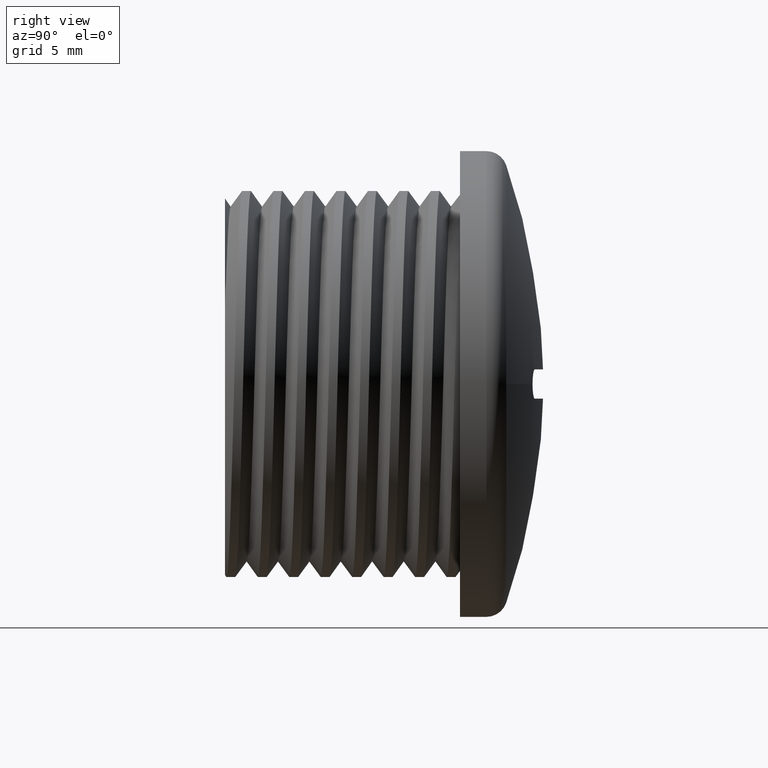
[diagram: clean part render]
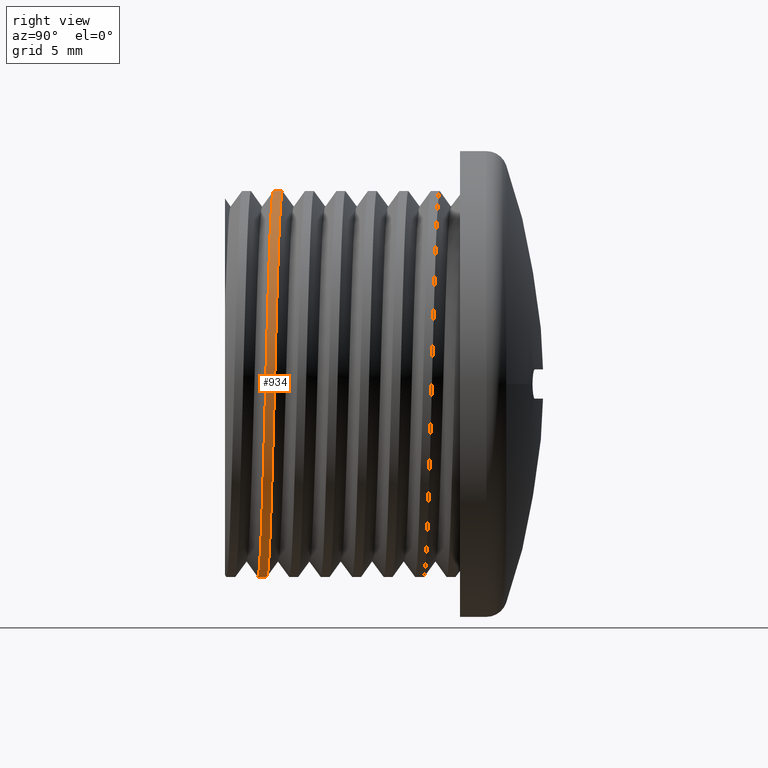
[diagram: same view with one face highlighted and labeled with its STEP entity id]
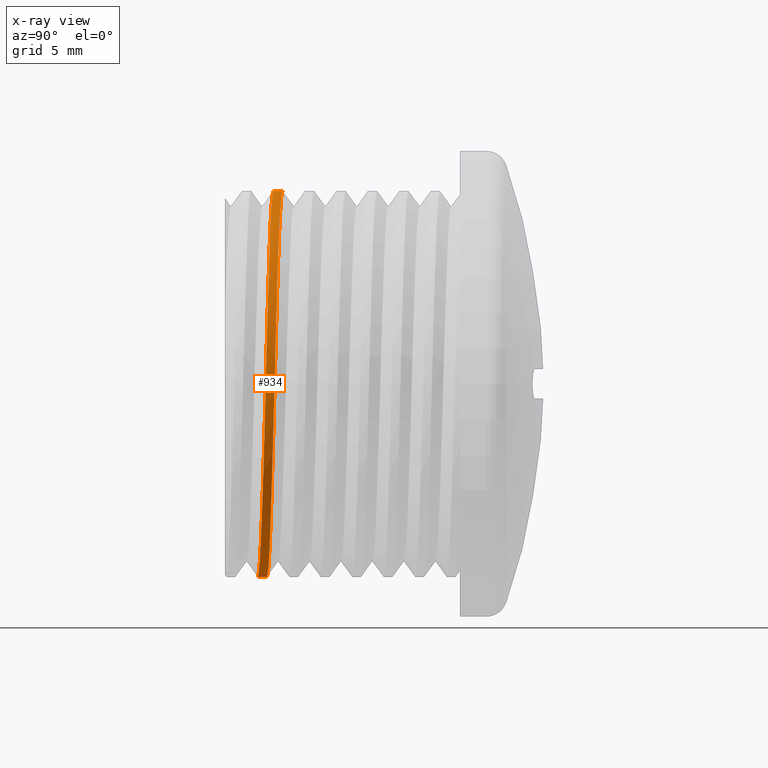
[diagram: x-ray of the same camera — body ghosted, the highlighted face saturated]
A machine part, right view. The second image highlights one B-rep face of the part: STEP entity #934.
The next image is the same camera in x-ray: the body ghosted, the highlighted face saturated — about 0% of this face is hidden behind the body in this view.
In plain terms, the highlighted cylindrical surface (partial cylindrical patch) has radius 9.2 mm, axis along (-0, -1, -0).
Its self-contained STEP definition (entity closure, byte-faithful):
#386 = CARTESIAN_POINT ( 'NONE',  ( 3.009948960421700600E-011, 1.521218227850835900, -9.200000000000002800 ) ) ;
#435 = CARTESIAN_POINT ( 'NONE',  ( -1.690012582823347300E-015, 2.271218227850093600, 9.199999999999999300 ) ) ;
#441 = CARTESIAN_POINT ( 'NONE',  ( 3.810764773832485900, 2.177468227850110500, 9.200000000000025900 ) ) ;
#442 = CARTESIAN_POINT ( 'NONE',  ( 9.200000000000025900, 1.989968227850109000, 3.810764773832490300 ) ) ;
#443 = CARTESIAN_POINT ( 'NONE',  ( 6.505382386916250100, 2.083718227850110100, 6.505382386916252800 ) ) ;
#444 = CARTESIAN_POINT ( 'NONE',  ( 9.200000000000020600, 1.896218227850109600, 2.253350110431135200E-015 ) ) ;
#445 = CARTESIAN_POINT ( 'NONE',  ( 9.200000000000027700, 1.802468227850109400, -3.810764773832482800 ) ) ;
#446 = CARTESIAN_POINT ( 'NONE',  ( 6.505382386916251900, 1.708718227850110100, -6.505382386916251000 ) ) ;
#456 = ORIENTED_EDGE ( 'NONE', *, *, #857, .T. ) ;
#464 = ORIENTED_EDGE ( 'NONE', *, *, #877, .T. ) ;
#484 = ORIENTED_EDGE ( 'NONE', *, *, #852, .T. ) ;
#491 = ORIENTED_EDGE ( 'NONE', *, *, #854, .F. ) ;
#648 = EDGE_LOOP ( 'NONE', ( #464, #456, #484, #491 ) ) ;
#672 = VERTEX_POINT ( 'NONE', #734 ) ;
#716 = VERTEX_POINT ( 'NONE', #806 ) ;
#727 = VERTEX_POINT ( 'NONE', #811 ) ;
#729 = VERTEX_POINT ( 'NONE', #779 ) ;
#734 = CARTESIAN_POINT ( 'NONE',  ( 3.009948960421700600E-011, 1.521218227850835900, -9.200000000000002800 ) ) ;
#779 = CARTESIAN_POINT ( 'NONE',  ( -2.681970476171263200E-011, 1.944690285272103700, -9.199999999999994000 ) ) ;
#806 = CARTESIAN_POINT ( 'NONE',  ( -1.690012582823346900E-015, 2.694690285272764100, 9.199999999999995700 ) ) ;
#811 = CARTESIAN_POINT ( 'NONE',  ( -1.690012582823347300E-015, 2.271218227850093600, 9.199999999999999300 ) ) ;
#829 = CARTESIAN_POINT ( 'NONE',  ( 3.810764773844962100, 1.614968227850543500, -9.199999999987548800 ) ) ;
#852 = EDGE_CURVE ( 'NONE', #727, #672, #2722, .T. ) ;
#854 = EDGE_CURVE ( 'NONE', #729, #672, #2405, .T. ) ;
#857 = EDGE_CURVE ( 'NONE', #716, #727, #2432, .T. ) ;
#877 = EDGE_CURVE ( 'NONE', #729, #716, #2733, .T. ) ;
#934 = ADVANCED_FACE ( 'NONE', ( #1786 ), #1739, .T. ) ;
#1739 = CYLINDRICAL_SURFACE ( 'NONE', #2162, 9.199999999999999300 ) ;
#1753 = CARTESIAN_POINT ( 'NONE',  ( 0.0000000000000000000, 39.89106148374602900, 0.0000000000000000000 ) ) ;
#1754 = DIRECTION ( 'NONE',  ( -0.0000000000000000000, -1.000000000000000000, -0.0000000000000000000 ) ) ;
#1755 = DIRECTION ( 'NONE',  ( 0.0000000000000000000, 0.0000000000000000000, -1.000000000000000000 ) ) ;
#1786 = FACE_OUTER_BOUND ( 'NONE', #648, .T. ) ;
#2084 = VECTOR ( 'NONE', #2435, 1000.000000000000000 ) ;
#2086 = VECTOR ( 'NONE', #2398, 1000.000000000000000 ) ;
#2162 = AXIS2_PLACEMENT_3D ( 'NONE', #1753, #1754, #1755 ) ;
#2398 = DIRECTION ( 'NONE',  ( -0.0000000000000000000, -1.000000000000000000, -0.0000000000000000000 ) ) ;
#2405 = LINE ( 'NONE', #2407, #2086 ) ;
#2407 = CARTESIAN_POINT ( 'NONE',  ( 0.0000000000000000000, 39.89106148374602900, -9.199999999999999300 ) ) ;
#2422 = CARTESIAN_POINT ( 'NONE',  ( 1.126675055215564800E-015, 39.89106148374602900, 9.199999999999999300 ) ) ;
#2432 = LINE ( 'NONE', #2422, #2084 ) ;
#2435 = DIRECTION ( 'NONE',  ( -0.0000000000000000000, -1.000000000000000000, -0.0000000000000000000 ) ) ;
#2544 = CARTESIAN_POINT ( 'NONE',  ( -2.681970476171263200E-011, 1.944690285272103700, -9.199999999999994000 ) ) ;
#2575 = CARTESIAN_POINT ( 'NONE',  ( 9.200000000000002800, 2.413440285272763700, 3.810764773832481000 ) ) ;
#2578 = CARTESIAN_POINT ( 'NONE',  ( 3.810764773821353000, 2.038440285272376000, -9.200000000011124600 ) ) ;
#2585 = CARTESIAN_POINT ( 'NONE',  ( 9.199999999999997500, 2.319690285272763200, 2.253350110431129600E-015 ) ) ;
#2587 = CARTESIAN_POINT ( 'NONE',  ( -1.690012582823346900E-015, 2.694690285272764100, 9.199999999999995700 ) ) ;
#2592 = CARTESIAN_POINT ( 'NONE',  ( 6.505382386916235000, 2.507190285272763700, 6.505382386916237700 ) ) ;
#2593 = CARTESIAN_POINT ( 'NONE',  ( 9.200000000000004600, 2.225940285272763200, -3.810764773832473900 ) ) ;
#2594 = CARTESIAN_POINT ( 'NONE',  ( 3.810764773832475700, 2.600940285272763200, 9.200000000000002800 ) ) ;
#2595 = CARTESIAN_POINT ( 'NONE',  ( 6.505382386916236800, 2.132190285272763200, -6.505382386916235900 ) ) ;
#2722 =( BOUNDED_CURVE ( )  B_SPLINE_CURVE ( 2, ( #435, #441, #443, #442, #444, #445, #446, #829, #386 ),
 .UNSPECIFIED., .F., .F. ) 
 B_SPLINE_CURVE_WITH_KNOTS ( ( 3, 2, 2, 2, 3 ),
 ( 0.3436904820873481500, 0.3509407357668428700, 0.3581909894463375400, 0.3654412431258322000, 0.3726914968053269300 ),
 .UNSPECIFIED. ) 
 CURVE ( )  GEOMETRIC_REPRESENTATION_ITEM ( )  RATIONAL_B_SPLINE_CURVE ( ( 1.000000000000000000, 0.9238795325112867400, 1.000000000000000000, 0.9238795325112867400, 1.000000000000000000, 0.9238795325112867400, 1.000000000000000000, 0.9238795325116124800, 0.9999999999996742600 ) ) 
 REPRESENTATION_ITEM ( '' )  );
#2733 =( BOUNDED_CURVE ( )  B_SPLINE_CURVE ( 2, ( #2544, #2578, #2595, #2593, #2585, #2575, #2592, #2594, #2587 ),
 .UNSPECIFIED., .F., .F. ) 
 B_SPLINE_CURVE_WITH_KNOTS ( ( 3, 2, 2, 2, 3 ),
 ( 0.07679832112951992500, 0.08404999399043375200, 0.09130166685134762100, 0.09855333971226147600, 0.1058050125731753400 ),
 .UNSPECIFIED. ) 
 CURVE ( )  GEOMETRIC_REPRESENTATION_ITEM ( )  RATIONAL_B_SPLINE_CURVE ( ( 1.000000000000290200, 0.9238795325109965300, 1.000000000000000000, 0.9238795325112867400, 1.000000000000000000, 0.9238795325112867400, 1.000000000000000000, 0.9238795325112867400, 1.000000000000000000 ) ) 
 REPRESENTATION_ITEM ( '' )  );